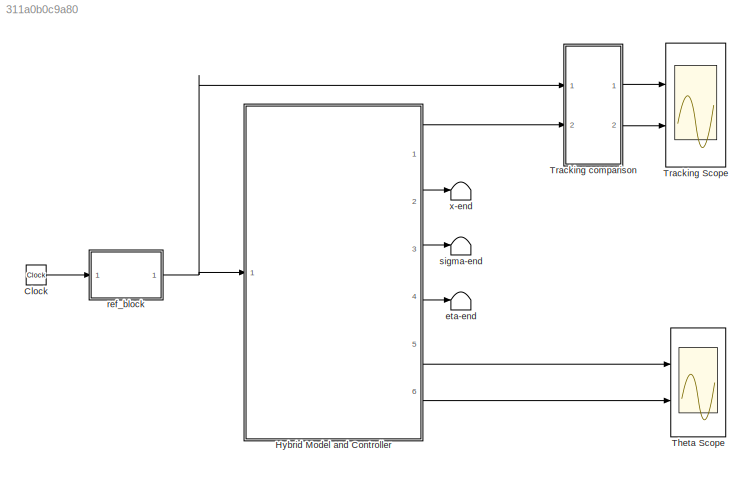
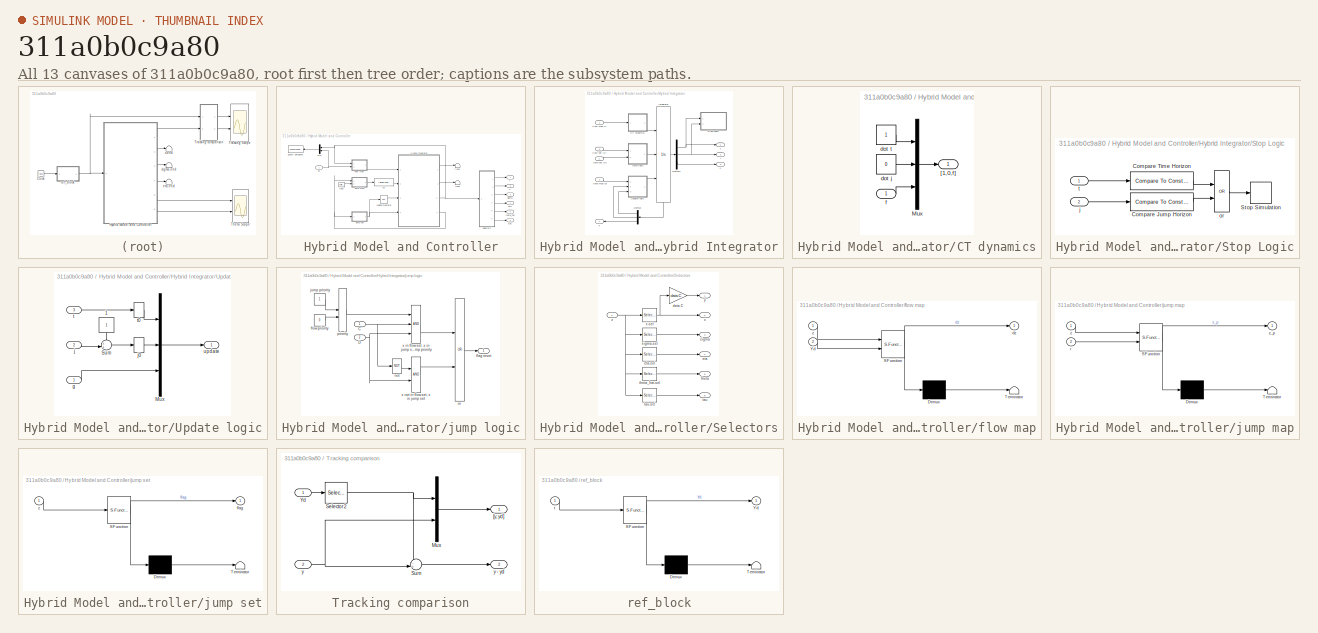
[diagram: thumbnail index - all 13 canvases of the model, root first then tree order]
MODEL slx_311a0b0c9a80
KIND model
CONFIG AbsTol = auto
CONFIG EnableMultiTasking = off
CONFIG FixedStep = 1e-4
CONFIG InitFcn = run initSim\n
CONFIG MaxStep = auto
CONFIG MinStep = auto
CONFIG RelTol = 1e-3
CONFIG SampleTimeConstraint = Unconstrained
CONFIG Solver = FixedStepAuto
CONFIG SolverName = FixedStepAuto
CONFIG StartTime = 0.0
CONFIG StopFcn = run endSim\n
CONFIG StopTime = data.T_end
BLOCK [Clock] Clock
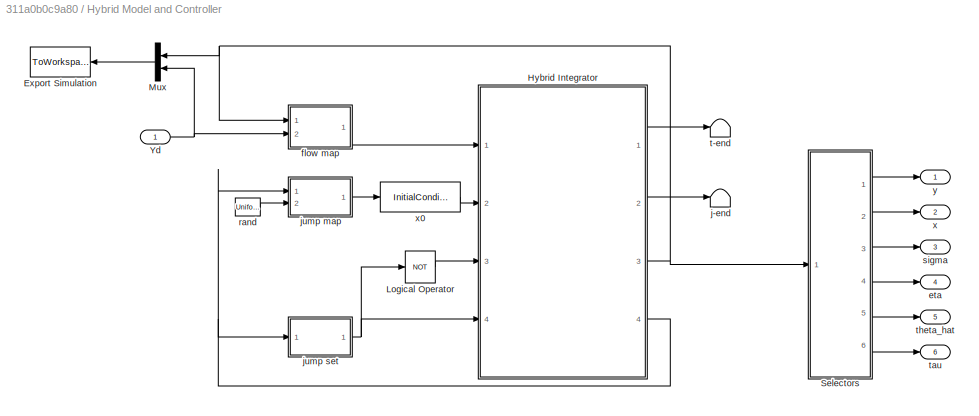
BLOCK [SubSystem] Hybrid Model and Controller
  Ports = [1, 6]
  RequestExecContextInheritance = off
BLOCK [ToWorkspace] Hybrid Model and Controller/Export Simulation
  FixptAsFi = on
  MaxDataPoints = inf
  Ports = [1]
  SampleTime = -1
  Save2DSignal = 3-D array (concatenate along third dimension)
  VariableName = sim
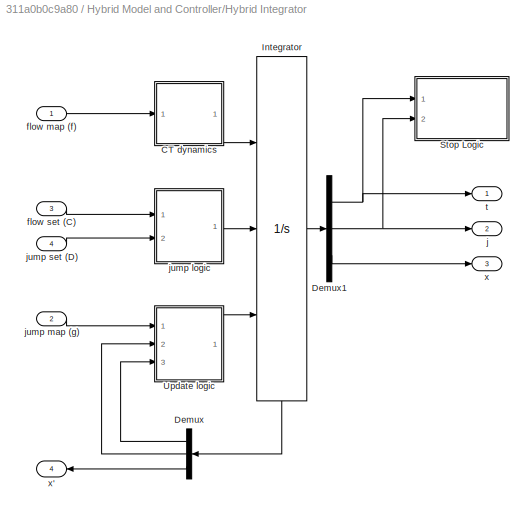
BLOCK [SubSystem] Hybrid Model and Controller/Hybrid Integrator
  Ports = [4, 4]
  RequestExecContextInheritance = off
BLOCK [SubSystem] Hybrid Model and Controller/Hybrid Integrator/CT dynamics
  Ports = [1, 1]
  RequestExecContextInheritance = off
BLOCK [Mux] Hybrid Model and Controller/Hybrid Integrator/CT dynamics/Mux
  DisplayOption = bar
  Inputs = 3
  Ports = [3, 1]
BLOCK [Outport] Hybrid Model and Controller/Hybrid Integrator/CT dynamics/[1,0,f]
  IconDisplay = Port number
BLOCK [Constant] Hybrid Model and Controller/Hybrid Integrator/CT dynamics/dot j
  Value = 0
BLOCK [Constant] Hybrid Model and Controller/Hybrid Integrator/CT dynamics/dot t
BLOCK [Inport] Hybrid Model and Controller/Hybrid Integrator/CT dynamics/f
  IconDisplay = Port number
BLOCK [Demux] Hybrid Model and Controller/Hybrid Integrator/Demux
  DisplayOption = bar
  Outputs = [1 ,1, length(data.ics)]
  Ports = [1, 3]
BLOCK [Demux] Hybrid Model and Controller/Hybrid Integrator/Demux1
  DisplayOption = bar
  Outputs = [1, 1, length(data.ics)]
  Ports = [1, 3]
BLOCK [Integrator] Hybrid Model and Controller/Hybrid Integrator/Integrator
  ExternalReset = level hold
  InitialConditionSource = external
  Ports = [3, 1, 0, 0, 1]
  ShowStatePort = on
  ZeroCross = off
BLOCK [SubSystem] Hybrid Model and Controller/Hybrid Integrator/Stop Logic
  Ports = [2]
  RequestExecContextInheritance = off
BLOCK [Reference] Hybrid Model and Controller/Hybrid Integrator/Stop Logic/Compare Jump Horizon  REF=simulink/Logic and Bit
Operations/Compare
To Constant
  Ports = [1, 1]
  SourceBlock = simulink/Logic and Bit\nOperations/Compare\nTo Constant
  SourceProductBaseCode = SL
  SourceProductName = Simulink
  SourceType = Compare To Constant
BLOCK [Reference] Hybrid Model and Controller/Hybrid Integrator/Stop Logic/Compare Time Horizon  REF=simulink/Logic and Bit
Operations/Compare
To Constant
  Ports = [1, 1]
  SourceBlock = simulink/Logic and Bit\nOperations/Compare\nTo Constant
  SourceProductBaseCode = SL
  SourceProductName = Simulink
  SourceType = Compare To Constant
BLOCK [Stop] Hybrid Model and Controller/Hybrid Integrator/Stop Logic/Stop Simulation
BLOCK [Inport] Hybrid Model and Controller/Hybrid Integrator/Stop Logic/j
  IconDisplay = Port number
  Port = 2
BLOCK [Logic] Hybrid Model and Controller/Hybrid Integrator/Stop Logic/or
  AllPortsSameDT = off
  Operator = OR
  OutDataTypeStr = boolean
  Ports = [2, 1]
BLOCK [Inport] Hybrid Model and Controller/Hybrid Integrator/Stop Logic/t
  IconDisplay = Port number
BLOCK [SubSystem] Hybrid Model and Controller/Hybrid Integrator/Update logic
  Ports = [3, 1]
  RequestExecContextInheritance = off
BLOCK [Constant] Hybrid Model and Controller/Hybrid Integrator/Update logic/1
BLOCK [Mux] Hybrid Model and Controller/Hybrid Integrator/Update logic/Mux
  DisplayOption = bar
  Inputs = 3
  Ports = [3, 1]
BLOCK [Sum] Hybrid Model and Controller/Hybrid Integrator/Update logic/Sum
  IconShape = round
  InputSameDT = off
  Inputs = ++|
  OutDataTypeStr = Inherit: Inherit via internal rule
  Ports = [2, 1]
  SaturateOnIntegerOverflow = off
BLOCK [Inport] Hybrid Model and Controller/Hybrid Integrator/Update logic/g
  IconDisplay = Port number
BLOCK [Inport] Hybrid Model and Controller/Hybrid Integrator/Update logic/j
  IconDisplay = Port number
  Port = 2
BLOCK [InitialCondition] Hybrid Model and Controller/Hybrid Integrator/Update logic/j0
  Value = 0
BLOCK [Inport] Hybrid Model and Controller/Hybrid Integrator/Update logic/t
  IconDisplay = Port number
  Port = 3
BLOCK [InitialCondition] Hybrid Model and Controller/Hybrid Integrator/Update logic/t0
  Value = 0
BLOCK [Outport] Hybrid Model and Controller/Hybrid Integrator/Update logic/update
  IconDisplay = Port number
BLOCK [Inport] Hybrid Model and Controller/Hybrid Integrator/flow map (f)
  IconDisplay = Port number
BLOCK [Inport] Hybrid Model and Controller/Hybrid Integrator/flow set (C)
  IconDisplay = Port number
  Port = 3
BLOCK [Outport] Hybrid Model and Controller/Hybrid Integrator/j
  IconDisplay = Port number
  Port = 2
BLOCK [SubSystem] Hybrid Model and Controller/Hybrid Integrator/jump logic
  Ports = [2, 1]
  RequestExecContextInheritance = off
BLOCK [Inport] Hybrid Model and Controller/Hybrid Integrator/jump logic/C
  IconDisplay = Port number
BLOCK [Inport] Hybrid Model and Controller/Hybrid Integrator/jump logic/D
  IconDisplay = Port number
  Port = 2
BLOCK [Outport] Hybrid Model and Controller/Hybrid Integrator/jump logic/flag reset
  IconDisplay = Port number
BLOCK [Constant] Hybrid Model and Controller/Hybrid Integrator/jump logic/flow priority
  Value = 0
BLOCK [Constant] Hybrid Model and Controller/Hybrid Integrator/jump logic/jump priority
BLOCK [Logic] Hybrid Model and Controller/Hybrid Integrator/jump logic/not
  AllPortsSameDT = off
  Inputs = 3
  Operator = NOT
  OutDataTypeStr = boolean
  Ports = [1, 1]
BLOCK [Logic] Hybrid Model and Controller/Hybrid Integrator/jump logic/or
  AllPortsSameDT = off
  Operator = OR
  OutDataTypeStr = boolean
  Ports = [2, 1]
BLOCK [ManualSwitch] Hybrid Model and Controller/Hybrid Integrator/jump logic/priority
BLOCK [Logic] Hybrid Model and Controller/Hybrid Integrator/jump logic/x in flow set, x in jump set, jump priority
  AllPortsSameDT = off
  Inputs = 3
  OutDataTypeStr = boolean
  Ports = [3, 1]
BLOCK [Logic] Hybrid Model and Controller/Hybrid Integrator/jump logic/x not in flow set, x in jump set
  AllPortsSameDT = off
  OutDataTypeStr = boolean
  Ports = [2, 1]
BLOCK [Inport] Hybrid Model and Controller/Hybrid Integrator/jump map (g)
  IconDisplay = Port number
  Port = 2
BLOCK [Inport] Hybrid Model and Controller/Hybrid Integrator/jump set (D)
  IconDisplay = Port number
  Port = 4
BLOCK [Outport] Hybrid Model and Controller/Hybrid Integrator/t
  IconDisplay = Port number
BLOCK [Outport] Hybrid Model and Controller/Hybrid Integrator/x
  IconDisplay = Port number
  Port = 3
BLOCK [Outport] Hybrid Model and Controller/Hybrid Integrator/x'
  IconDisplay = Port number
  Port = 4
BLOCK [Logic] Hybrid Model and Controller/Logical Operator
  AllPortsSameDT = off
  Operator = NOT
  OutDataTypeStr = boolean
  Ports = [1, 1]
BLOCK [Mux] Hybrid Model and Controller/Mux
  DisplayOption = bar
  Inputs = 2
  Ports = [2, 1]
BLOCK [SubSystem] Hybrid Model and Controller/Selectors
  Ports = [1, 6]
  RequestExecContextInheritance = off
BLOCK [Gain] Hybrid Model and Controller/Selectors/data.C
  Gain = data.C
  Multiplication = Matrix(K*u)
  OutDataTypeStr = Inherit: Inherit via internal rule
  ParamDataTypeStr = Inherit: Inherit via internal rule
  SaturateOnIntegerOverflow = off
BLOCK [Outport] Hybrid Model and Controller/Selectors/eta
  IconDisplay = Port number
  Port = 4
BLOCK [Selector] Hybrid Model and Controller/Selectors/eta-sel
  IndexOptions = Index vector (dialog)
  Indices = data.index.eta
  InputPortWidth = size(data.ics, 1)
  OutputSizes = 1
  Ports = [1, 1]
BLOCK [Outport] Hybrid Model and Controller/Selectors/sigma
  IconDisplay = Port number
  Port = 3
BLOCK [Selector] Hybrid Model and Controller/Selectors/sigma-sel
  IndexOptions = Index vector (dialog)
  Indices = data.index.sigma
  InputPortWidth = size(data.ics, 1)
  OutputSizes = 1
  Ports = [1, 1]
BLOCK [Outport] Hybrid Model and Controller/Selectors/tau
  IconDisplay = Port number
  Port = 6
BLOCK [Selector] Hybrid Model and Controller/Selectors/tau-sel
  IndexOptions = Index vector (dialog)
  Indices = data.index.tau
  InputPortWidth = size(data.ics, 1)
  OutputSizes = 1
  Ports = [1, 1]
BLOCK [Outport] Hybrid Model and Controller/Selectors/theta
  IconDisplay = Port number
  Port = 5
BLOCK [Selector] Hybrid Model and Controller/Selectors/theta_hat-sel
  IndexOptions = Index vector (dialog)
  Indices = data.index.theta_hat
  InputPortWidth = size(data.ics, 1)
  OutputSizes = 1
  Ports = [1, 1]
BLOCK [Outport] Hybrid Model and Controller/Selectors/x
  IconDisplay = Port number
  Port = 2
BLOCK [Selector] Hybrid Model and Controller/Selectors/x-sel
  IndexOptions = Index vector (dialog)
  Indices = data.index.x
  InputPortWidth = size(data.ics, 1)
  OutputSizes = 1
  Ports = [1, 1]
BLOCK [Outport] Hybrid Model and Controller/Selectors/y
  IconDisplay = Port number
BLOCK [Inport] Hybrid Model and Controller/Selectors/z
  IconDisplay = Port number
BLOCK [Inport] Hybrid Model and Controller/Yd
  IconDisplay = Port number
BLOCK [Outport] Hybrid Model and Controller/eta
  IconDisplay = Port number
  Port = 4
BLOCK [SubSystem] Hybrid Model and Controller/flow map
  ErrorFcn = Stateflow.Translate.translate
  PermitHierarchicalResolution = ExplicitOnly
  Ports = [2, 1]
  RequestExecContextInheritance = off
  SFBlockType = MATLAB Function
  TreatAsAtomicUnit = on
BLOCK [Demux] Hybrid Model and Controller/flow map/ Demux 
  Outputs = 1
  Ports = [1, 1]
BLOCK [S-Function] Hybrid Model and Controller/flow map/ SFunction 
  EnableBusSupport = on
  FunctionName = sf_sfun
  Parameters = data
  PortCounts = [2 2]
  Ports = [2, 2]
  SFcnIsStateOwnerBlock = off
  SFunctionDeploymentMode = off
  Tag = Stateflow S-Function example 13
BLOCK [Terminator] Hybrid Model and Controller/flow map/ Terminator 
BLOCK [Inport] Hybrid Model and Controller/flow map/Yd
  IconDisplay = Port number
  Port = 2
BLOCK [Outport] Hybrid Model and Controller/flow map/dz
  IconDisplay = Port number
BLOCK [Inport] Hybrid Model and Controller/flow map/z
  IconDisplay = Port number
BLOCK [Terminator] Hybrid Model and Controller/j-end
BLOCK [SubSystem] Hybrid Model and Controller/jump map
  ErrorFcn = Stateflow.Translate.translate
  PermitHierarchicalResolution = ExplicitOnly
  Ports = [2, 1]
  Priority = 2
  RequestExecContextInheritance = off
  SFBlockType = MATLAB Function
  TreatAsAtomicUnit = on
BLOCK [Demux] Hybrid Model and Controller/jump map/ Demux 
  Outputs = 1
  Ports = [1, 1]
BLOCK [S-Function] Hybrid Model and Controller/jump map/ SFunction 
  EnableBusSupport = on
  FunctionName = sf_sfun
  Parameters = data
  PortCounts = [2 2]
  Ports = [2, 2]
  SFcnIsStateOwnerBlock = off
  SFunctionDeploymentMode = off
  Tag = Stateflow S-Function example 15
BLOCK [Terminator] Hybrid Model and Controller/jump map/ Terminator 
BLOCK [Inport] Hybrid Model and Controller/jump map/r
  IconDisplay = Port number
  Port = 2
BLOCK [Inport] Hybrid Model and Controller/jump map/z
  IconDisplay = Port number
BLOCK [Outport] Hybrid Model and Controller/jump map/z_p
  IconDisplay = Port number
BLOCK [SubSystem] Hybrid Model and Controller/jump set
  ErrorFcn = Stateflow.Translate.translate
  PermitHierarchicalResolution = ExplicitOnly
  Ports = [1, 1]
  RequestExecContextInheritance = off
  SFBlockType = MATLAB Function
  TreatAsAtomicUnit = on
BLOCK [Demux] Hybrid Model and Controller/jump set/ Demux 
  Outputs = 1
  Ports = [1, 1]
BLOCK [S-Function] Hybrid Model and Controller/jump set/ SFunction 
  EnableBusSupport = on
  FunctionName = sf_sfun
  Parameters = data
  PortCounts = [1 2]
  Ports = [1, 2]
  SFcnIsStateOwnerBlock = off
  SFunctionDeploymentMode = off
  Tag = Stateflow S-Function example 16
BLOCK [Terminator] Hybrid Model and Controller/jump set/ Terminator 
BLOCK [Outport] Hybrid Model and Controller/jump set/flag
  IconDisplay = Port number
BLOCK [Inport] Hybrid Model and Controller/jump set/z
  IconDisplay = Port number
BLOCK [UniformRandomNumber] Hybrid Model and Controller/rand
  Minimum = 0
  SampleTime = 0.001
BLOCK [Outport] Hybrid Model and Controller/sigma
  IconDisplay = Port number
  Port = 3
BLOCK [Terminator] Hybrid Model and Controller/t-end
BLOCK [Outport] Hybrid Model and Controller/tau
  IconDisplay = Port number
  Port = 6
BLOCK [Outport] Hybrid Model and Controller/theta_hat
  IconDisplay = Port number
  Port = 5
BLOCK [Outport] Hybrid Model and Controller/x
  IconDisplay = Port number
  Port = 2
BLOCK [InitialCondition] Hybrid Model and Controller/x0
  Value = data.ics
BLOCK [Outport] Hybrid Model and Controller/y
  IconDisplay = Port number
BLOCK [Scope] Theta Scope
  Floating = off
  NumInputPorts = 2
  Ports = [2]
  ScopeSpecificationString = Simulink.scopes.TimeScopeBlockCfg('CurrentConfiguration', extmgr.ConfigurationSet(extmgr.Configuration('Core','General UI',true),extmgr.Configuration('Core','Source UI',true),extmgr.Configuration('Sources','WiredSimulink',true,'DataLoggingVariableName','ScopeData2'),extmgr.Configuration('Visuals','Time Domain',true,'SerializedDisplays',{struct('MinYLimReal','-0.44213','MaxYLimReal','3.39208','YLab...<+2218ch>
BLOCK [Scope] Tracking Scope
  Floating = off
  NumInputPorts = 2
  Ports = [2]
  ScopeSpecificationString = Simulink.scopes.TimeScopeBlockCfg('CurrentConfiguration', extmgr.ConfigurationSet(extmgr.Configuration('Core','General UI',true),extmgr.Configuration('Core','Source UI',true),extmgr.Configuration('Sources','WiredSimulink',true,'DataLoggingVariableName','ScopeData1'),extmgr.Configuration('Visuals','Time Domain',true,'SerializedDisplays',{struct('MinYLimReal','-8.93067','MaxYLimReal','12.02475','YLa...<+2120ch>
BLOCK [SubSystem] Tracking comparison
  Ports = [2, 2]
  RequestExecContextInheritance = off
BLOCK [Mux] Tracking comparison/Mux
  DisplayOption = bar
  Inputs = 2
  Ports = [2, 1]
BLOCK [Selector] Tracking comparison/Selector2
  IndexOptions = Index vector (dialog)
  Indices = [1]
  InputPortWidth = data.theta_n
  OutputSizes = 1
  Ports = [1, 1]
BLOCK [Sum] Tracking comparison/Sum
  IconShape = round
  InputSameDT = off
  Inputs = -+|
  OutDataTypeStr = Inherit: Inherit via internal rule
  Ports = [2, 1]
  SaturateOnIntegerOverflow = off
BLOCK [Inport] Tracking comparison/Yd
  IconDisplay = Port number
BLOCK [Outport] Tracking comparison/[y, yd]
  IconDisplay = Port number
BLOCK [Inport] Tracking comparison/y
  IconDisplay = Port number
  Port = 2
BLOCK [Outport] Tracking comparison/y - yd
  IconDisplay = Port number
  Port = 2
BLOCK [Terminator] eta-end
BLOCK [SubSystem] ref_block
  ErrorFcn = Stateflow.Translate.translate
  PermitHierarchicalResolution = ExplicitOnly
  Ports = [1, 1]
  RequestExecContextInheritance = off
  SFBlockType = MATLAB Function
  TreatAsAtomicUnit = on
BLOCK [Demux] ref_block/ Demux 
  Outputs = 1
  Ports = [1, 1]
BLOCK [S-Function] ref_block/ SFunction 
  EnableBusSupport = on
  FunctionName = sf_sfun
  PortCounts = [1 2]
  Ports = [1, 2]
  SFcnIsStateOwnerBlock = off
  SFunctionDeploymentMode = off
  Tag = Stateflow S-Function example 2
BLOCK [Terminator] ref_block/ Terminator 
BLOCK [Outport] ref_block/Yd
  IconDisplay = Port number
BLOCK [Inport] ref_block/t
  IconDisplay = Port number
BLOCK [Terminator] sigma-end
BLOCK [Terminator] x-end
LINE Clock:1 -> ref_block:1
LINE Hybrid Model and Controller/Hybrid Integrator/CT dynamics/Mux:1 -> Hybrid Model and Controller/Hybrid Integrator/CT dynamics/[1,0,f]:1
LINE Hybrid Model and Controller/Hybrid Integrator/CT dynamics/dot j:1 -> Hybrid Model and Controller/Hybrid Integrator/CT dynamics/Mux:2
LINE Hybrid Model and Controller/Hybrid Integrator/CT dynamics/dot t:1 -> Hybrid Model and Controller/Hybrid Integrator/CT dynamics/Mux:1
LINE Hybrid Model and Controller/Hybrid Integrator/CT dynamics/f:1 -> Hybrid Model and Controller/Hybrid Integrator/CT dynamics/Mux:3
LINE Hybrid Model and Controller/Hybrid Integrator/CT dynamics:1 -> Hybrid Model and Controller/Hybrid Integrator/Integrator:1
NET Hybrid Model and Controller/Hybrid Integrator/Demux1:1 -> Hybrid Model and Controller/Hybrid Integrator/Stop Logic:1, Hybrid Model and Controller/Hybrid Integrator/t:1
NET Hybrid Model and Controller/Hybrid Integrator/Demux1:2 -> Hybrid Model and Controller/Hybrid Integrator/Stop Logic:2, Hybrid Model and Controller/Hybrid Integrator/j:1
LINE Hybrid Model and Controller/Hybrid Integrator/Demux1:3 -> Hybrid Model and Controller/Hybrid Integrator/x:1
LINE Hybrid Model and Controller/Hybrid Integrator/Demux:1 -> Hybrid Model and Controller/Hybrid Integrator/Update logic:3
LINE Hybrid Model and Controller/Hybrid Integrator/Demux:2 -> Hybrid Model and Controller/Hybrid Integrator/Update logic:2
LINE Hybrid Model and Controller/Hybrid Integrator/Demux:3 -> Hybrid Model and Controller/Hybrid Integrator/x':1
LINE Hybrid Model and Controller/Hybrid Integrator/Integrator:1 -> Hybrid Model and Controller/Hybrid Integrator/Demux1:1
LINE Hybrid Model and Controller/Hybrid Integrator/Integrator:state -> Hybrid Model and Controller/Hybrid Integrator/Demux:1
LINE Hybrid Model and Controller/Hybrid Integrator/Stop Logic/Compare Jump Horizon:1 -> Hybrid Model and Controller/Hybrid Integrator/Stop Logic/or:2
LINE Hybrid Model and Controller/Hybrid Integrator/Stop Logic/Compare Time Horizon:1 -> Hybrid Model and Controller/Hybrid Integrator/Stop Logic/or:1
LINE Hybrid Model and Controller/Hybrid Integrator/Stop Logic/j:1 -> Hybrid Model and Controller/Hybrid Integrator/Stop Logic/Compare Jump Horizon:1
LINE Hybrid Model and Controller/Hybrid Integrator/Stop Logic/or:1 -> Hybrid Model and Controller/Hybrid Integrator/Stop Logic/Stop Simulation:1
LINE Hybrid Model and Controller/Hybrid Integrator/Stop Logic/t:1 -> Hybrid Model and Controller/Hybrid Integrator/Stop Logic/Compare Time Horizon:1
LINE Hybrid Model and Controller/Hybrid Integrator/Update logic/1:1 -> Hybrid Model and Controller/Hybrid Integrator/Update logic/Sum:1
LINE Hybrid Model and Controller/Hybrid Integrator/Update logic/Mux:1 -> Hybrid Model and Controller/Hybrid Integrator/Update logic/update:1
LINE Hybrid Model and Controller/Hybrid Integrator/Update logic/Sum:1 -> Hybrid Model and Controller/Hybrid Integrator/Update logic/j0:1
LINE Hybrid Model and Controller/Hybrid Integrator/Update logic/g:1 -> Hybrid Model and Controller/Hybrid Integrator/Update logic/Mux:3
LINE Hybrid Model and Controller/Hybrid Integrator/Update logic/j0:1 -> Hybrid Model and Controller/Hybrid Integrator/Update logic/Mux:2
LINE Hybrid Model and Controller/Hybrid Integrator/Update logic/j:1 -> Hybrid Model and Controller/Hybrid Integrator/Update logic/Sum:2
LINE Hybrid Model and Controller/Hybrid Integrator/Update logic/t0:1 -> Hybrid Model and Controller/Hybrid Integrator/Update logic/Mux:1
LINE Hybrid Model and Controller/Hybrid Integrator/Update logic/t:1 -> Hybrid Model and Controller/Hybrid Integrator/Update logic/t0:1
LINE Hybrid Model and Controller/Hybrid Integrator/Update logic:1 -> Hybrid Model and Controller/Hybrid Integrator/Integrator:3
LINE Hybrid Model and Controller/Hybrid Integrator/flow map (f):1 -> Hybrid Model and Controller/Hybrid Integrator/CT dynamics:1
LINE Hybrid Model and Controller/Hybrid Integrator/flow set (C):1 -> Hybrid Model and Controller/Hybrid Integrator/jump logic:1
NET Hybrid Model and Controller/Hybrid Integrator/jump logic/C:1 -> Hybrid Model and Controller/Hybrid Integrator/jump logic/not:1, Hybrid Model and Controller/Hybrid Integrator/jump logic/x in flow set, x in jump set, jump priority:2
NET Hybrid Model and Controller/Hybrid Integrator/jump logic/D:1 -> Hybrid Model and Controller/Hybrid Integrator/jump logic/x in flow set, x in jump set, jump priority:3, Hybrid Model and Controller/Hybrid Integrator/jump logic/x not in flow set, x in jump set:2
LINE Hybrid Model and Controller/Hybrid Integrator/jump logic/flow priority:1 -> Hybrid Model and Controller/Hybrid Integrator/jump logic/priority:2
LINE Hybrid Model and Controller/Hybrid Integrator/jump logic/jump priority:1 -> Hybrid Model and Controller/Hybrid Integrator/jump logic/priority:1
LINE Hybrid Model and Controller/Hybrid Integrator/jump logic/not:1 -> Hybrid Model and Controller/Hybrid Integrator/jump logic/x not in flow set, x in jump set:1
LINE Hybrid Model and Controller/Hybrid Integrator/jump logic/or:1 -> Hybrid Model and Controller/Hybrid Integrator/jump logic/flag reset:1
LINE Hybrid Model and Controller/Hybrid Integrator/jump logic/priority:1 -> Hybrid Model and Controller/Hybrid Integrator/jump logic/x in flow set, x in jump set, jump priority:1
LINE Hybrid Model and Controller/Hybrid Integrator/jump logic/x in flow set, x in jump set, jump priority:1 -> Hybrid Model and Controller/Hybrid Integrator/jump logic/or:1
LINE Hybrid Model and Controller/Hybrid Integrator/jump logic/x not in flow set, x in jump set:1 -> Hybrid Model and Controller/Hybrid Integrator/jump logic/or:2
LINE Hybrid Model and Controller/Hybrid Integrator/jump logic:1 -> Hybrid Model and Controller/Hybrid Integrator/Integrator:2
LINE Hybrid Model and Controller/Hybrid Integrator/jump map (g):1 -> Hybrid Model and Controller/Hybrid Integrator/Update logic:1
LINE Hybrid Model and Controller/Hybrid Integrator/jump set (D):1 -> Hybrid Model and Controller/Hybrid Integrator/jump logic:2
LINE Hybrid Model and Controller/Hybrid Integrator:1 -> Hybrid Model and Controller/t-end:1
LINE Hybrid Model and Controller/Hybrid Integrator:2 -> Hybrid Model and Controller/j-end:1
NET Hybrid Model and Controller/Hybrid Integrator:3 -> Hybrid Model and Controller/Mux:1, Hybrid Model and Controller/Selectors:1, Hybrid Model and Controller/flow map:1
NET Hybrid Model and Controller/Hybrid Integrator:4 -> Hybrid Model and Controller/jump map:1, Hybrid Model and Controller/jump set:1
LINE Hybrid Model and Controller/Logical Operator:1 -> Hybrid Model and Controller/Hybrid Integrator:3
LINE Hybrid Model and Controller/Mux:1 -> Hybrid Model and Controller/Export Simulation:1
LINE Hybrid Model and Controller/Selectors/data.C:1 -> Hybrid Model and Controller/Selectors/y:1
LINE Hybrid Model and Controller/Selectors/eta-sel:1 -> Hybrid Model and Controller/Selectors/eta:1
LINE Hybrid Model and Controller/Selectors/sigma-sel:1 -> Hybrid Model and Controller/Selectors/sigma:1
LINE Hybrid Model and Controller/Selectors/tau-sel:1 -> Hybrid Model and Controller/Selectors/tau:1
LINE Hybrid Model and Controller/Selectors/theta_hat-sel:1 -> Hybrid Model and Controller/Selectors/theta:1
NET Hybrid Model and Controller/Selectors/x-sel:1 -> Hybrid Model and Controller/Selectors/data.C:1, Hybrid Model and Controller/Selectors/x:1
NET Hybrid Model and Controller/Selectors/z:1 -> Hybrid Model and Controller/Selectors/eta-sel:1, Hybrid Model and Controller/Selectors/sigma-sel:1, Hybrid Model and Controller/Selectors/tau-sel:1, Hybrid Model and Controller/Selectors/theta_hat-sel:1, Hybrid Model and Controller/Selectors/x-sel:1
LINE Hybrid Model and Controller/Selectors:1 -> Hybrid Model and Controller/y:1
LINE Hybrid Model and Controller/Selectors:2 -> Hybrid Model and Controller/x:1
LINE Hybrid Model and Controller/Selectors:3 -> Hybrid Model and Controller/sigma:1
LINE Hybrid Model and Controller/Selectors:4 -> Hybrid Model and Controller/eta:1
LINE Hybrid Model and Controller/Selectors:5 -> Hybrid Model and Controller/theta_hat:1
LINE Hybrid Model and Controller/Selectors:6 -> Hybrid Model and Controller/tau:1
NET Hybrid Model and Controller/Yd:1 -> Hybrid Model and Controller/Mux:2, Hybrid Model and Controller/flow map:2
LINE Hybrid Model and Controller/flow map:1 -> Hybrid Model and Controller/Hybrid Integrator:1
LINE Hybrid Model and Controller/jump map:1 -> Hybrid Model and Controller/x0:1
NET Hybrid Model and Controller/jump set:1 -> Hybrid Model and Controller/Hybrid Integrator:4, Hybrid Model and Controller/Logical Operator:1
LINE Hybrid Model and Controller/rand:1 -> Hybrid Model and Controller/jump map:2
LINE Hybrid Model and Controller/x0:1 -> Hybrid Model and Controller/Hybrid Integrator:2
LINE Hybrid Model and Controller:1 -> Tracking comparison:2
LINE Hybrid Model and Controller:2 -> x-end:1
LINE Hybrid Model and Controller:3 -> sigma-end:1
LINE Hybrid Model and Controller:4 -> eta-end:1
LINE Hybrid Model and Controller:5 -> Theta Scope:1
LINE Hybrid Model and Controller:6 -> Theta Scope:2
LINE Tracking comparison/Mux:1 -> Tracking comparison/[y, yd]:1
NET Tracking comparison/Selector2:1 -> Tracking comparison/Mux:1, Tracking comparison/Sum:1
LINE Tracking comparison/Sum:1 -> Tracking comparison/y - yd:1
LINE Tracking comparison/Yd:1 -> Tracking comparison/Selector2:1
NET Tracking comparison/y:1 -> Tracking comparison/Mux:2, Tracking comparison/Sum:2
LINE Tracking comparison:1 -> Tracking Scope:1
LINE Tracking comparison:2 -> Tracking Scope:2
NET ref_block:1 -> Hybrid Model and Controller:1, Tracking comparison:1
note: NET lines group one-source signal fan-out (src -> all destinations, sorted); 1:1 wires keep LINE
CHART ref_block states=1 transitions=1
  STATE_LABEL 'eML_blk_kernel()'
  STATE_LABEL 'SCRIPT:\nfunction Yd = ref_block(t)\n%#codegen\n\n%    This function was generated by the Symbolic Math Toolbox version 8.1.\n%    21-Sep-2018 11:48:09\n\nt2 = t.*(2.0./5.0);\nt3 = t.*(1.0./5.0);\nt4 = pi.*(1.0./3.0);\nt5 = t+t4;\nt6 = cos(t3);\nt7 = sin(t2);\nt8 = cos(t5);\nYd = [t6.*5.0+t7+t8;cos(t2).*(2.0./5.0)-sin(t3)-sin(t5);t6.*(-1.0./5.0)-t7.*(4.0./2.5e1)-t8];\n'
CHART Hybrid Model and Controller/flow map states=1 transitions=1
  STATE_LABEL 'eML_blk_kernel()'
  STATE_LABEL "SCRIPT:\nfunction dz = f(z, Yd, data)\n  dz = zeros(size(data.ics));  \n  \n  %% Signal selection\n  x          = z(data.index.x);\n  sigma      = z(data.index.sigma);\n  eta        = z(data.index.eta);\n  theta_hat  = z(data.index.theta_hat);\n  \n  %% Feed Forward evaluation\n  u_ff       = theta_hat' * Yd;\n  \n  %% Model \n  dx         = data.A * x + data.B * u_ff;\n  \n  %% Controller\n  dsigma     = data.Lam...<+210ch>"
CHART Hybrid Model and Controller/jump map states=1 transitions=1
  STATE_LABEL 'eML_blk_kernel()'
  STATE_LABEL 'SCRIPT:\nfunction z_p = g(z, r, data)\n  z_p = zeros(size(data.ics));  \n\n\n  %% Signal Selection\n  x          = z(data.index.x);\n  sigma      = z(data.index.sigma);\n  eta        = z(data.index.eta);\n  theta_hat  = z(data.index.theta_hat);\n  \n  e1         = [1; 0; 0];\n  \n  %% Model\n  x_p         = x;\n  \n  %% Controller\n  sigma_p     = sigma;\n  eta_p       = sigma;\n  theta_hat_p = theta_hat - data.gamm...<+296ch>'
CHART Hybrid Model and Controller/jump set states=1 transitions=1
  STATE_LABEL 'eML_blk_kernel()'
  STATE_LABEL 'SCRIPT:\nfunction flag  = D(z, data) \n  \n  tau     = z(data.index.tau);\n  tau_set = z(data.index.tau_set);\n  \n  flag = 0;\n  if (tau >= tau_set)\n    flag = 1;\n  end\n  \nend'
